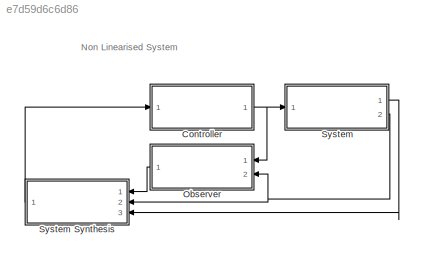
MODEL slx_e7d59d6c6d86
KIND model
CONFIG AbsTol = auto
CONFIG EnableMultiTasking = off
CONFIG FixedStep = auto
CONFIG MaxStep = auto
CONFIG MinStep = auto
CONFIG RelTol = 1e-3
CONFIG SampleTimeConstraint = Unconstrained
CONFIG SolverName = ode14x
CONFIG StartTime = 0.0
CONFIG StopTime = 300
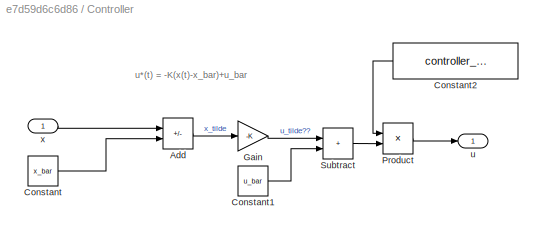
BLOCK [SubSystem] Controller
  Ports = [1, 1]
  RequestExecContextInheritance = off
BLOCK [Sum] Controller/Add
  IconShape = rectangular
  Inputs = +-
  Ports = [2, 1]
BLOCK [Constant] Controller/Constant
  Value = x_bar
BLOCK [Constant] Controller/Constant1
  Value = u_bar
BLOCK [Constant] Controller/Constant2
  NameLocation = top
  Value = controller_enabled
BLOCK [Gain] Controller/Gain
  Gain = -K
  Multiplication = Matrix(K*u)
BLOCK [Product] Controller/Product
  Ports = [2, 1]
BLOCK [Sum] Controller/Subtract
  IconShape = rectangular
  Ports = [2, 1]
BLOCK [Outport] Controller/u
BLOCK [Inport] Controller/x
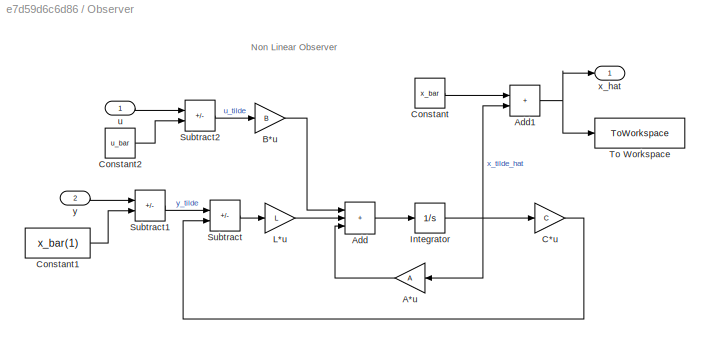
BLOCK [SubSystem] Observer
  Ports = [2, 1]
  RequestExecContextInheritance = off
BLOCK [Gain] Observer/A*u
  Gain = A
  Multiplication = Matrix(K*u)
BLOCK [Sum] Observer/Add
  IconShape = rectangular
  Inputs = +++
  Ports = [3, 1]
BLOCK [Sum] Observer/Add1
  IconShape = rectangular
  Ports = [2, 1]
BLOCK [Gain] Observer/B*u
  Gain = B
  Multiplication = Matrix(K*u)
BLOCK [Gain] Observer/C*u
  Gain = C
  Multiplication = Matrix(K*u)
BLOCK [Constant] Observer/Constant
  Value = x_bar
BLOCK [Constant] Observer/Constant1
  Value = x_bar(1)
BLOCK [Constant] Observer/Constant2
  Value = u_bar
BLOCK [Integrator] Observer/Integrator
  InitialCondition = x0-x_bar'
  Ports = [1, 1]
BLOCK [Gain] Observer/L*u
  Gain = L
  Multiplication = Matrix(K*u)
BLOCK [Sum] Observer/Subtract
  IconShape = rectangular
  Inputs = +-
  Ports = [2, 1]
BLOCK [Sum] Observer/Subtract1
  IconShape = rectangular
  Inputs = +-
  Ports = [2, 1]
BLOCK [Sum] Observer/Subtract2
  IconShape = rectangular
  Inputs = +-
  Ports = [2, 1]
BLOCK [ToWorkspace] Observer/To Workspace
  FixptAsFi = on
  MaxDataPoints = inf
  Ports = [1]
  SampleTime = -1
  VariableName = x_hat
BLOCK [Inport] Observer/u
BLOCK [Outport] Observer/x_hat
BLOCK [Inport] Observer/y
  Port = 2
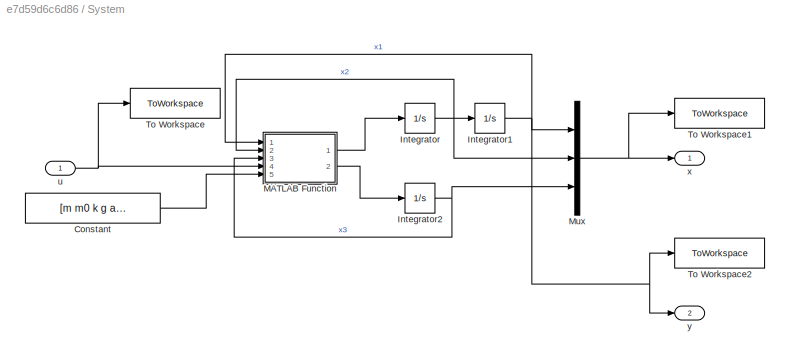
BLOCK [SubSystem] System
  Ports = [1, 2]
  RequestExecContextInheritance = off
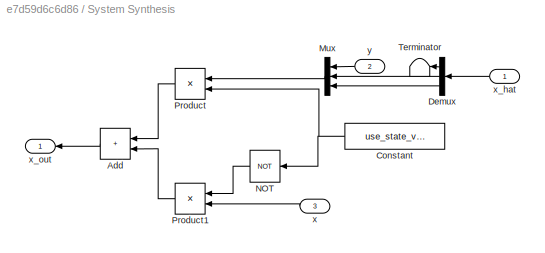
BLOCK [SubSystem] System Synthesis
  NameLocation = top
  Ports = [3, 1]
  RequestExecContextInheritance = off
BLOCK [Sum] System Synthesis/Add
  IconShape = rectangular
  Inputs = 2
  NameLocation = top
  Ports = [2, 1]
BLOCK [Constant] System Synthesis/Constant
  NameLocation = top
  Value = use_state_variables
BLOCK [Demux] System Synthesis/Demux
  NameLocation = top
  Outputs = 3
  Ports = [1, 3]
BLOCK [Mux] System Synthesis/Mux
  DisplayOption = bar
  Inputs = 3
  NameLocation = top
  Ports = [3, 1]
BLOCK [Logic] System Synthesis/NOT
  AllPortsSameDT = off
  IconShape = distinctive
  NameLocation = top
  Operator = NOT
  OutDataTypeStr = boolean
  Ports = [1, 1]
BLOCK [Product] System Synthesis/Product
  NameLocation = top
  Ports = [2, 1]
BLOCK [Product] System Synthesis/Product1
  NameLocation = top
  Ports = [2, 1]
BLOCK [Terminator] System Synthesis/Terminator
  NameLocation = top
BLOCK [Inport] System Synthesis/x
  NameLocation = top
  Port = 3
BLOCK [Inport] System Synthesis/x_hat
  NameLocation = top
BLOCK [Outport] System Synthesis/x_out
  NameLocation = top
BLOCK [Inport] System Synthesis/y
  NameLocation = top
  Port = 2
BLOCK [Constant] System/Constant
  Value = [m m0 k g a alpha L0 R]
BLOCK [Integrator] System/Integrator
  InitialCondition = x0(2)
  Ports = [1, 1]
BLOCK [Integrator] System/Integrator1
  InitialCondition = x0(1)
  Ports = [1, 1]
BLOCK [Integrator] System/Integrator2
  InitialCondition = x0(3)
  Ports = [1, 1]
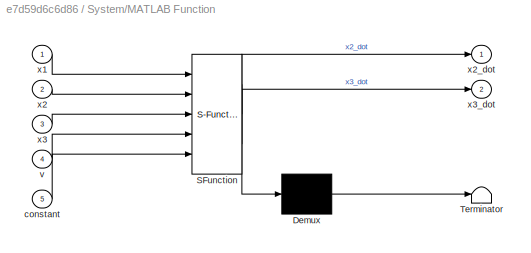
BLOCK [SubSystem] System/MATLAB Function
  ErrorFcn = Stateflow.Translate.translate
  PermitHierarchicalResolution = ExplicitOnly
  Ports = [5, 2]
  RequestExecContextInheritance = off
  SFBlockType = MATLAB Function
  TreatAsAtomicUnit = on
BLOCK [Demux] System/MATLAB Function/ Demux 
  Outputs = 1
  Ports = [1, 1]
BLOCK [S-Function] System/MATLAB Function/ SFunction 
  EnableBusSupport = on
  FunctionName = sf_sfun
  PortCounts = [5 3]
  Ports = [5, 3]
  SFcnIsStateOwnerBlock = off
  SFunctionDeploymentMode = off
  Tag = Stateflow S-Function 2
BLOCK [Terminator] System/MATLAB Function/ Terminator 
BLOCK [Inport] System/MATLAB Function/constant
  Port = 5
BLOCK [Inport] System/MATLAB Function/v
  Port = 4
BLOCK [Inport] System/MATLAB Function/x1
BLOCK [Inport] System/MATLAB Function/x2
  Port = 2
BLOCK [Outport] System/MATLAB Function/x2_dot
BLOCK [Inport] System/MATLAB Function/x3
  Port = 3
BLOCK [Outport] System/MATLAB Function/x3_dot
  Port = 2
BLOCK [Mux] System/Mux
  DisplayOption = bar
  Inputs = 3
  NameLocation = right
  Ports = [3, 1]
BLOCK [ToWorkspace] System/To Workspace
  FixptAsFi = on
  MaxDataPoints = inf
  Ports = [1]
  SampleTime = -1
  VariableName = u
BLOCK [ToWorkspace] System/To Workspace1
  FixptAsFi = on
  MaxDataPoints = inf
  Ports = [1]
  SampleTime = -1
  VariableName = x
BLOCK [ToWorkspace] System/To Workspace2
  FixptAsFi = on
  MaxDataPoints = inf
  Ports = [1]
  SampleTime = -1
  VariableName = y
BLOCK [Inport] System/u
BLOCK [Outport] System/x
BLOCK [Outport] System/y
  Port = 2
ANNOTATION (root): Non Linearised System
ANNOTATION Controller: u*(t) = -K(x(t)-x_bar)+u_bar
ANNOTATION Observer: Non Linear Observer
LINE Controller/Add:1 -> Controller/Gain:1
LINE Controller/Constant1:1 -> Controller/Subtract:2
LINE Controller/Constant2:1 -> Controller/Product:1
LINE Controller/Constant:1 -> Controller/Add:2
LINE Controller/Gain:1 -> Controller/Subtract:1
LINE Controller/Product:1 -> Controller/u:1
LINE Controller/Subtract:1 -> Controller/Product:2
LINE Controller/x:1 -> Controller/Add:1
NET Controller:1 -> Observer:1, System:1
LINE Observer/A*u:1 -> Observer/Add:3
NET Observer/Add1:1 -> Observer/To Workspace:1, Observer/x_hat:1
LINE Observer/Add:1 -> Observer/Integrator:1
LINE Observer/B*u:1 -> Observer/Add:1
LINE Observer/C*u:1 -> Observer/Subtract:2
LINE Observer/Constant1:1 -> Observer/Subtract1:2
LINE Observer/Constant2:1 -> Observer/Subtract2:2
LINE Observer/Constant:1 -> Observer/Add1:1
NET Observer/Integrator:1 -> Observer/A*u:1, Observer/Add1:2, Observer/C*u:1
LINE Observer/L*u:1 -> Observer/Add:2
LINE Observer/Subtract1:1 -> Observer/Subtract:1
LINE Observer/Subtract2:1 -> Observer/B*u:1
LINE Observer/Subtract:1 -> Observer/L*u:1
LINE Observer/u:1 -> Observer/Subtract2:1
LINE Observer/y:1 -> Observer/Subtract1:1
LINE Observer:1 -> System Synthesis:1
LINE System Synthesis/Add:1 -> System Synthesis/x_out:1
NET System Synthesis/Constant:1 -> System Synthesis/NOT:1, System Synthesis/Product:2
LINE System Synthesis/Demux:1 -> System Synthesis/Terminator:1
LINE System Synthesis/Demux:2 -> System Synthesis/Mux:2
LINE System Synthesis/Demux:3 -> System Synthesis/Mux:3
LINE System Synthesis/Mux:1 -> System Synthesis/Product:1
LINE System Synthesis/NOT:1 -> System Synthesis/Product1:1
LINE System Synthesis/Product1:1 -> System Synthesis/Add:2
LINE System Synthesis/Product:1 -> System Synthesis/Add:1
LINE System Synthesis/x:1 -> System Synthesis/Product1:2
LINE System Synthesis/x_hat:1 -> System Synthesis/Demux:1
LINE System Synthesis/y:1 -> System Synthesis/Mux:1
LINE System Synthesis:1 -> Controller:1
LINE System/Constant:1 -> System/MATLAB Function:5
NET System/Integrator1:1 -> System/MATLAB Function:1, System/Mux:1, System/To Workspace2:1, System/y:1
NET System/Integrator2:1 -> System/MATLAB Function:3, System/Mux:3
NET System/Integrator:1 -> System/Integrator1:1, System/MATLAB Function:2, System/Mux:2
LINE System/MATLAB Function:1 -> System/Integrator:1
LINE System/MATLAB Function:2 -> System/Integrator2:1
NET System/Mux:1 -> System/To Workspace1:1, System/x:1
NET System/u:1 -> System/MATLAB Function:4, System/To Workspace:1
LINE System:1 -> System Synthesis:3
NET System:2 -> Observer:2, System Synthesis:2
note: NET lines group one-source signal fan-out (src -> all destinations, sorted); 1:1 wires keep LINE
CHART System/MATLAB Function states=1 transitions=1
  STATE_LABEL 'eML_blk_kernel()'
  STATE_LABEL 'SCRIPT:\nfunction [x2_dot, x3_dot] = fcn(x1,x2,x3,v,constant)\n\nm = constant(1);\nm0 = constant(2);\nk = constant(3);\ng = constant(4);\na = constant(5);\nalpha = constant(6);\nL0 = constant(7);\nR = constant(8);\n\nlambda = sqrt(g/a);\nb = k/(lambda*m);\nbeta = lambda*L0/R;\nc = m0/m;\nI = sqrt(8*alpha*m0*g)/L0;\nu = v;\nT = beta*(1+1/(1+x1));\n\nx2_dot = -b*x2+1-((4*c*x3^2)/(1+x1)^2);\nx3_dot = (1/T)*(-x3+u+((beta*...<+22ch>'
CHART  states=0 transitions=0
